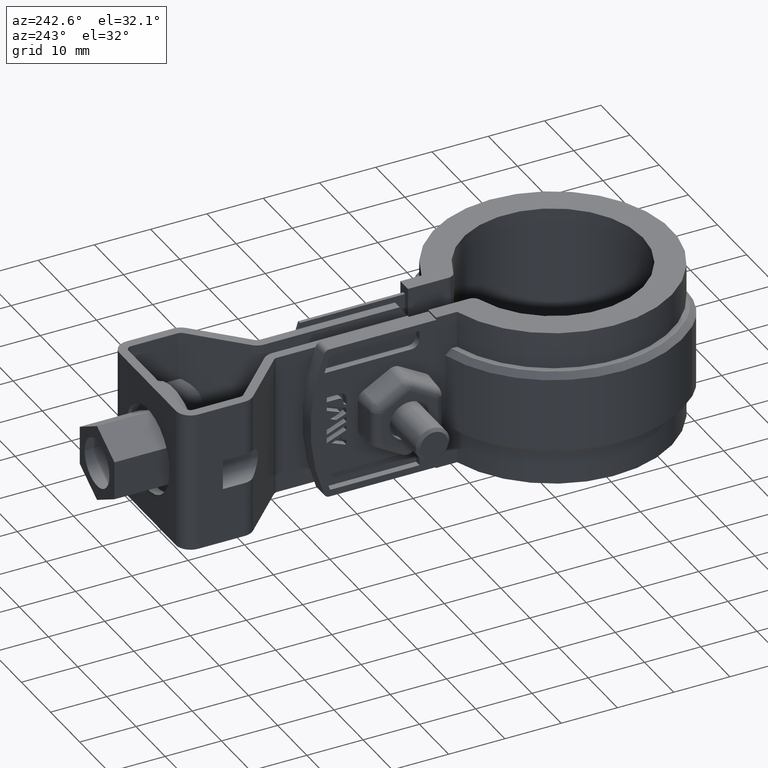
[diagram: clean part render]
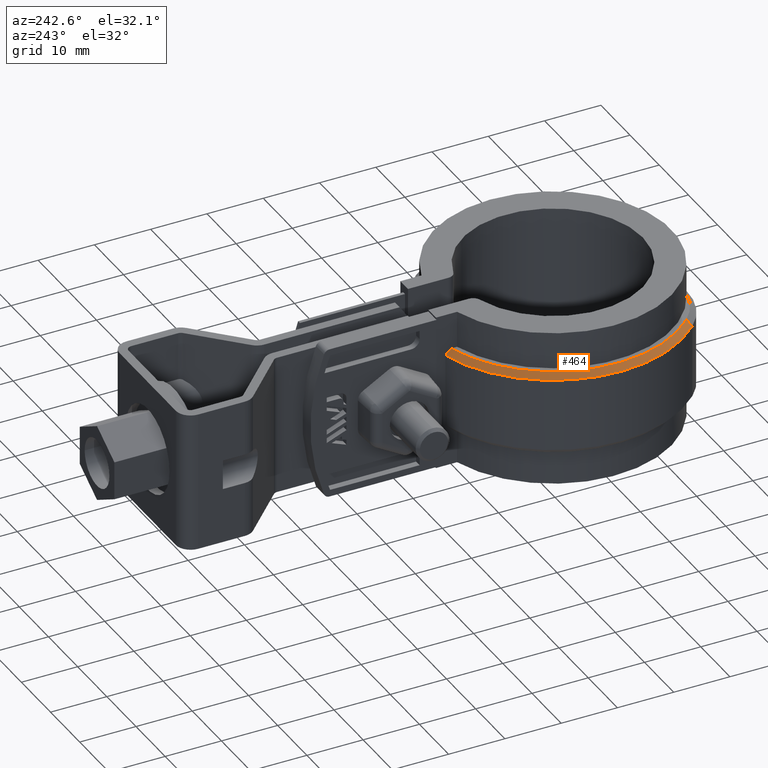
[diagram: same view with one face highlighted and labeled with its STEP entity id]
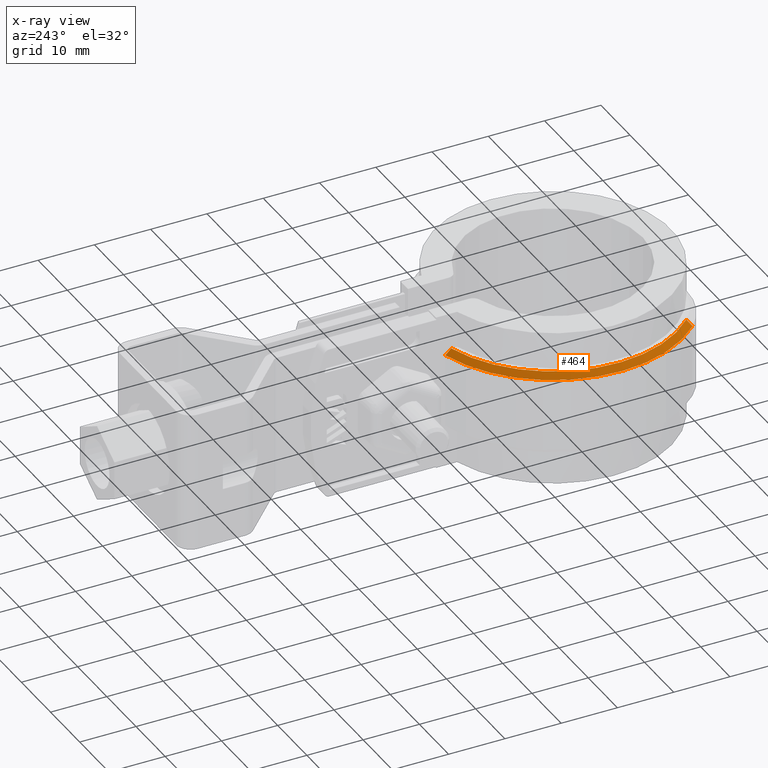
[diagram: x-ray of the same camera — body ghosted, the highlighted face saturated]
A machine part, auxiliary view. The second image highlights one B-rep face of the part: STEP entity #464.
The next image is the same camera in x-ray: the body ghosted, the highlighted face saturated — about 0% of this face is hidden behind the body in this view.
In plain terms, the highlighted conical surface has half-angle 45 deg.
Its self-contained STEP definition (entity closure, byte-faithful):
#464 = ADVANCED_FACE( '', ( #904 ), #905, .T. );
#904 = FACE_OUTER_BOUND( '', #1997, .T. );
#905 = CONICAL_SURFACE( '', #1998, 22.0950000000000, 0.785398163397449 );
#1997 = EDGE_LOOP( '', ( #4216, #4217, #4218, #4219 ) );
#1998 = AXIS2_PLACEMENT_3D( '', #4220, #4221, #4222 );
#4216 = ORIENTED_EDGE( '', *, *, #6270, .F. );
#4217 = ORIENTED_EDGE( '', *, *, #6461, .F. );
#4218 = ORIENTED_EDGE( '', *, *, #6462, .F. );
#4219 = ORIENTED_EDGE( '', *, *, #6459, .F. );
#4220 = CARTESIAN_POINT( '', ( -4.33680868994202E-015, -1.38777878078145E-014, -5.00000000000000 ) );
#4221 = DIRECTION( '', ( 0.000000000000000, 0.000000000000000, -1.00000000000000 ) );
#4222 = DIRECTION( '', ( -1.00000000000000, 0.000000000000000, 0.000000000000000 ) );
#6270 = EDGE_CURVE( '', #7299, #7301, #7302, .T. );
#6459 = EDGE_CURVE( '', #7301, #7616, #7617, .F. );
#6461 = EDGE_CURVE( '', #7619, #7299, #7620, .T. );
#6462 = EDGE_CURVE( '', #7616, #7619, #7621, .T. );
#7299 = VERTEX_POINT( '', #9648 );
#7301 = VERTEX_POINT( '', #9651 );
#7302 = B_SPLINE_CURVE_WITH_KNOTS( '', 3, ( #9652, #9653, #9654, #9655 ), .UNSPECIFIED., .F., .F., ( 4, 4 ), ( 1.84403634944074E-017, 0.00144175553964643 ), .UNSPECIFIED. );
#7616 = VERTEX_POINT( '', #10817 );
#7617 = CIRCLE( '', #10818, 22.0950000000000 );
#7619 = VERTEX_POINT( '', #10820 );
#7620 = CIRCLE( '', #10821, 23.0950000000000 );
#7621 = LINE( '', #10822, #10823 );
#9648 = CARTESIAN_POINT( '', ( -6.10000000000000, 22.2748518513591, -6.00000000000000 ) );
#9651 = CARTESIAN_POINT( '', ( -6.10000000000000, 21.2362667387655, -5.00000000000000 ) );
#9652 = CARTESIAN_POINT( '', ( -6.10000000000001, 22.2748518513592, -6.00000000000000 ) );
#9653 = CARTESIAN_POINT( '', ( -6.10000000000001, 21.9289403275758, -5.66637246391195 ) );
#9654 = CARTESIAN_POINT( '', ( -6.09999999999999, 21.5827583504448, -5.33302504133811 ) );
#9655 = CARTESIAN_POINT( '', ( -6.09999999999999, 21.2362667387655, -5.00000000000000 ) );
#10817 = CARTESIAN_POINT( '', ( -15.6327777739454, -15.6142654028436, -5.00000000000000 ) );
#10818 = AXIS2_PLACEMENT_3D( '', #12724, #12725, #12726 );
#10820 = CARTESIAN_POINT( '', ( -16.3403033577402, -16.3209531332280, -6.00000000000000 ) );
#10821 = AXIS2_PLACEMENT_3D( '', #12730, #12731, #12732 );
#10822 = CARTESIAN_POINT( '', ( -15.6327777739454, -15.6142654028436, -5.00000000000000 ) );
#10823 = VECTOR( '', #12733, 1000.00000000000 );
#12724 = CARTESIAN_POINT( '', ( -4.33680868994202E-015, -1.38777878078145E-014, -5.00000000000000 ) );
#12725 = DIRECTION( '', ( 0.000000000000000, 0.000000000000000, -1.00000000000000 ) );
#12726 = DIRECTION( '', ( -1.00000000000000, 0.000000000000000, 0.000000000000000 ) );
#12730 = CARTESIAN_POINT( '', ( -4.33680868994202E-015, -1.38777878078145E-014, -6.00000000000000 ) );
#12731 = DIRECTION( '', ( 0.000000000000000, 0.000000000000000, -1.00000000000000 ) );
#12732 = DIRECTION( '', ( -1.00000000000000, 0.000000000000000, 0.000000000000000 ) );
#12733 = DIRECTION( '', ( -0.500296138164254, -0.499703686336149, -0.707106781186546 ) );